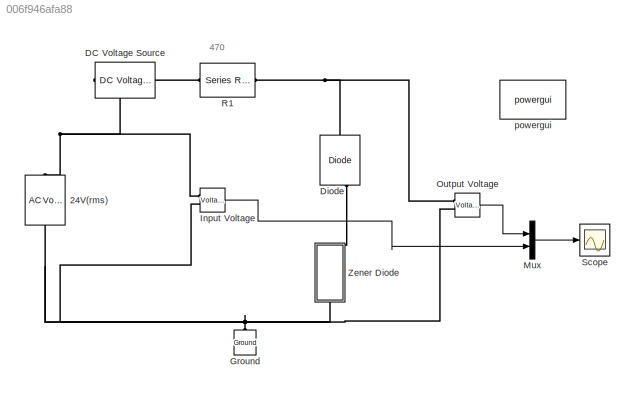
MODEL slx_006f946afa88
KIND model
CONFIG AbsTol = auto
CONFIG FixedStep = auto
CONFIG MaxStep = auto
CONFIG MinStep = auto
CONFIG RelTol = 1e-3
CONFIG SampleTimeConstraint = Unconstrained
CONFIG Solver = ode23tb
CONFIG SolverMode = Auto
CONFIG SolverName = ode23tb
CONFIG StartTime = 0.0
CONFIG StopTime = 0.05
BLOCK [Reference] 24V(rms)  REF=powerlib/Electrical
Sources/AC Voltage Source
  Amplitude = 24*sqrt(2)
  Frequency = 60
  Measurements = Voltage
  Phase = 0
  Ports = [0, 0, 0, 0, 0, 1, 1]
  SampleTime = 0
  SourceBlock = powerlib/Electrical\nSources/AC Voltage Source
  SourceType = AC Voltage Source
BLOCK [Reference] DC Voltage Source  REF=powerlib/Electrical
Sources/DC Voltage Source
  Amplitude = 10
  Measurements = Voltage
  Ports = [0, 0, 0, 0, 0, 1, 1]
  SourceBlock = powerlib/Electrical\nSources/DC Voltage Source
  SourceType = DC Voltage Source
BLOCK [Reference] Diode  REF=powerlib/Power
Electronics/Diode
  Cs = 0
  IC = 0
  Lon = 0
  Measurements = on
  Ports = [0, 1, 0, 0, 0, 1, 1]
  Ron = 0.001
  Rs = 0
  SourceBlock = powerlib/Power\nElectronics/Diode
  SourceType = Diode
  UseSnubber = off
  Vf = 0.8
BLOCK [Reference] Ground  REF=powerlib/Elements/Ground
  LConnTagsString = a
  Ports = [0, 0, 0, 0, 0, 1]
  SourceBlock = powerlib/Elements/Ground
  SourceType = Ground
BLOCK [Reference] Input Voltage  REF=powerlib/Measurements/Voltage Measurement
  OutputType = Complex
  PSBequivalent = 0
  PhasorSimulation = off
  Ports = [0, 1, 0, 0, 0, 2]
  SourceBlock = powerlib/Measurements/Voltage Measurement
  SourceType = Voltage Measurement
  UserDataPersistent = on
BLOCK [Mux] Mux
  DisplayOption = bar
  Inputs = 2
  Ports = [2, 1]
BLOCK [Reference] Output Voltage  REF=powerlib/Measurements/Voltage Measurement
  OutputType = Complex
  PSBequivalent = 0
  PhasorSimulation = off
  Ports = [0, 1, 0, 0, 0, 2]
  SourceBlock = powerlib/Measurements/Voltage Measurement
  SourceType = Voltage Measurement
  UserDataPersistent = on
BLOCK [Reference] R1  REF=powerlib/Elements/Series RLC Branch
  BranchType = R
  Capacitance = 1e-6
  Inductance = 1e-3
  InitialCurrent = 0
  InitialVoltage = 0
  LConnTagsString = __new0
  Measurements = None
  Ports = [0, 0, 0, 0, 0, 1, 1]
  RConnTagsString = __new0
  Resistance = 470
  SetiL0 = off
  Setx0 = off
  SourceBlock = powerlib/Elements/Series RLC Branch
  SourceType = Series RLC Branch
BLOCK [Scope] Scope
  Floating = off
  NumInputPorts = 1
  Ports = [1]
  YMax = 15
  YMin = -15
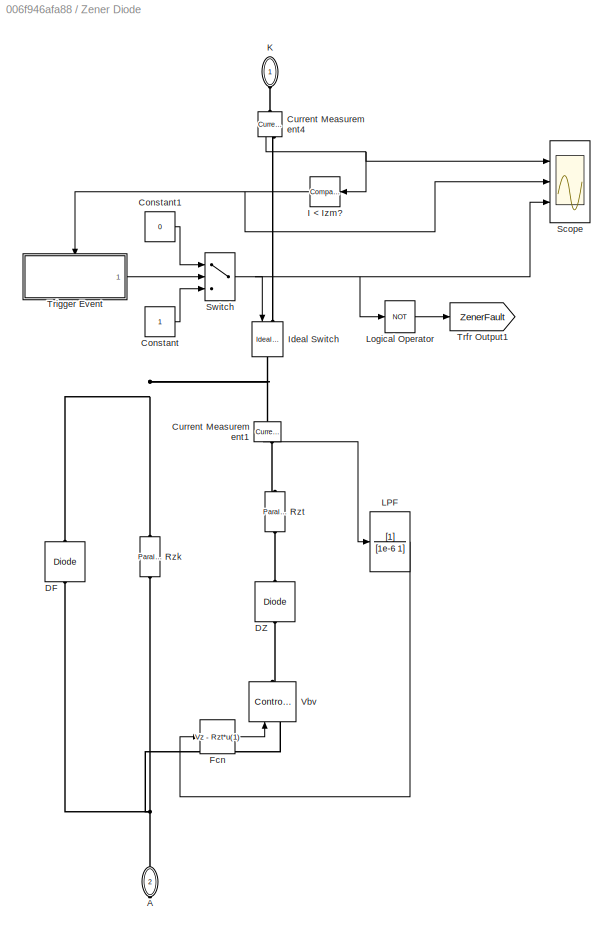
BLOCK [SubSystem] Zener Diode
  Ports = [0, 0, 0, 0, 0, 1, 1]
  RequestExecContextInheritance = off
BLOCK [PMIOPort] Zener Diode/A
  Port = 2
  Side = Right
BLOCK [Constant] Zener Diode/Constant
BLOCK [Constant] Zener Diode/Constant1
  Value = 0
BLOCK [Reference] Zener Diode/Current Measurement1  REF=powerlib/Measurements/Current Measurement
  OutputType = Complex
  PSBequivalent = 0
  PhasorSimulation = off
  Ports = [0, 1, 0, 0, 0, 1, 1]
  SourceBlock = powerlib/Measurements/Current Measurement
  SourceType = Current Measurement
BLOCK [Reference] Zener Diode/Current Measurement4  REF=powerlib/Measurements/Current Measurement
  OutputType = Complex
  PSBequivalent = 0
  PhasorSimulation = off
  Ports = [0, 1, 0, 0, 0, 1, 1]
  SourceBlock = powerlib/Measurements/Current Measurement
  SourceType = Current Measurement
BLOCK [Reference] Zener Diode/DF  REF=powerlib/Power
Electronics/Diode
  AttributesFormatString = \n
  Cs = 0
  IC = 0
  Lon = 0
  Measurements = off
  Ports = [0, 0, 0, 0, 0, 1, 1]
  Ron = Ron
  Rs = 1000
  SourceBlock = powerlib/Power\nElectronics/Diode
  SourceType = Diode
  UseSnubber = off
  Vf = Vf
BLOCK [Reference] Zener Diode/DZ  REF=powerlib/Power
Electronics/Diode
  AttributesFormatString = \n
  Cs = inf
  IC = 0
  Lon = 0
  Measurements = off
  Ports = [0, 0, 0, 0, 0, 1, 1]
  Ron = 1e-6
  Rs = 100
  SourceBlock = powerlib/Power\nElectronics/Diode
  SourceType = Diode
  UseSnubber = off
  Vf = 0
BLOCK [Fcn] Zener Diode/Fcn
  Expr = Vz - Rzt*u(1)
BLOCK [Reference] Zener Diode/I < Izm?  REF=simulink/Logic and Bit
Operations/Compare
To Constant
  OutDataTypeStr = boolean
  Ports = [1, 1]
  SourceBlock = simulink/Logic and Bit\nOperations/Compare\nTo Constant
  SourceType = Compare To Constant
  ZeroCross = on
  const = Izm
  relop = >
BLOCK [Reference] Zener Diode/Ideal Switch  REF=powerlib/Power
Electronics/Ideal Switch
  Cs = 0
  IC = 1
  Lon = 0
  Measurements = off
  Ports = [1, 0, 0, 0, 0, 1, 1]
  Ron = 0.001
  Rs = 1e5
  SourceBlock = powerlib/Power\nElectronics/Ideal Switch
  SourceType = Ideal Switch
BLOCK [PMIOPort] Zener Diode/K
  Port = 1
  Side = Left
BLOCK [TransferFcn] Zener Diode/LPF
  Denominator = [1e-6 1]
BLOCK [Logic] Zener Diode/Logical Operator
  AllPortsSameDT = off
  Operator = NOT
  OutDataTypeStr = boolean
  Ports = [1, 1]
BLOCK [Reference] Zener Diode/Rzk  REF=powerlib/Elements/Parallel RLC Branch
  AttributesFormatString = \n
  BranchType = R
  Capacitance = 1e-5
  Inductance = 1.0
  InitialCurrent = 0
  InitialVoltage = 0
  LConnTagsString = a
  Measurements = None
  Ports = [0, 0, 0, 0, 0, 1, 1]
  RConnTagsString = __new0
  Resistance = Rzk
  SetiL0 = off
  Setx0 = off
  SourceBlock = powerlib/Elements/Parallel RLC Branch
  SourceType = Parallel RLC Branch
BLOCK [Reference] Zener Diode/Rzt  REF=powerlib/Elements/Parallel RLC Branch
  AttributesFormatString = \n
  BranchType = R
  Capacitance = 1e-5
  Inductance = 1.0
  InitialCurrent = 0
  InitialVoltage = 0
  LConnTagsString = a
  Measurements = None
  Ports = [0, 0, 0, 0, 0, 1, 1]
  RConnTagsString = __new0
  Resistance = Rzt
  SetiL0 = off
  Setx0 = off
  SourceBlock = powerlib/Elements/Parallel RLC Branch
  SourceType = Parallel RLC Branch
BLOCK [Scope] Zener Diode/Scope
  DataFormat = StructureWithTime
  Floating = off
  LimitDataPoints = off
  NumInputPorts = 3
  Ports = [3]
  SampleTime = 0
  SaveName = ScopeData4
  YMax = 0.4~1~1.05
  YMin = -2.77556e-017~-1~0.95
  ZoomMode = xonly
BLOCK [Switch] Zener Diode/Switch
  Criteria = u2 > Threshold
  InputSameDT = off
  SaturateOnIntegerOverflow = off
BLOCK [Goto] Zener Diode/Trfr Output1
  GotoTag = ZenerFault
  TagVisibility = global
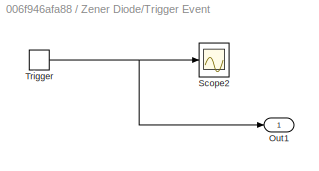
BLOCK [SubSystem] Zener Diode/Trigger Event
  Ports = [0, 1, 0, 1]
  RequestExecContextInheritance = off
  TreatAsAtomicUnit = on
BLOCK [Outport] Zener Diode/Trigger Event/Out1
  IconDisplay = Port number
BLOCK [Scope] Zener Diode/Trigger Event/Scope2
  DataFormat = StructureWithTime
  Floating = off
  LimitDataPoints = off
  NumInputPorts = 1
  Ports = [1]
  SampleTime = 0
  SaveName = ScopeData1
  YMax = 1
  YMin = -1
  ZoomMode = xonly
BLOCK [TriggerPort] Zener Diode/Trigger Event/Trigger
  Ports = [0, 1]
  ShowOutputPort = on
  StatesWhenEnabling = held
BLOCK [Reference] Zener Diode/Vbv  REF=powerlib/Electrical
Sources/Controlled Voltage Source
  Amplitude = 0
  Frequency = 0
  Initialize = off
  Measurements = None
  Phase = 0
  Ports = [1, 0, 0, 0, 0, 1, 1]
  SourceBlock = powerlib/Electrical\nSources/Controlled Voltage Source
  SourceType = Controlled Voltage Source
  Source_Type = DC
BLOCK [Reference] powergui  REF=powerlib/powergui
  DisableRonSwitches = off
  DisableSnubberDevices = on
  DisableVfSwitches = off
  DisplayEquations = off
  DisplayStyle = 1
  EnableUseOfTLC = off
  ErrMax = 1e-4
  Frange = [0:2:500]
  FreqAxis = off
  FunctionMessages = off
  HookPort = off
  Interpol = off
  Iterations = 50
  MaxFrequency = 1000
  Pbase = 100e6
  Ports = []
  Priority = 1
  ResistiveCurrentMeasurement = off
  RestoreLinks = warning
  RmsSteady = 1
  SPID = on
  SampleTime = 10e-6
  ShowGrid = off
  SolverType = Tustin/Backward Euler (TBE)
  SourceBlock = powerlib/powergui
  SourceType = PSB option menu block
  StartTime = 0.0
  SwTol = 0
  Ts = 100
  UnitsV = kV
  UnitsW = MW
  UserDataPersistent = on
  Xlog = on
  Ylog = off
  ZoomFFT = off
  buscounter = 0
  cycles = 1
  display = off
  echomessages = off
  frequency = 60
  frequencyindice = 0
  frequencyindicesteady = 1
  fundamental = 60
  methode = off
  save = off
  structure = 0
  variable = ZData
  x0status = blocks
ANNOTATION (root): 470
LINE Input Voltage:1 -> Mux:2
LINE Mux:1 -> Scope:1
LINE Output Voltage:1 -> Mux:1
LINE Zener Diode/Constant1:1 -> Zener Diode/Switch:1
LINE Zener Diode/Constant:1 -> Zener Diode/Switch:3
LINE Zener Diode/Current Measurement1:1 -> Zener Diode/LPF:1
NET Zener Diode/Current Measurement4:1 -> Zener Diode/I < Izm?:1, Zener Diode/Scope:1
LINE Zener Diode/Fcn:1 -> Zener Diode/Vbv:1
NET Zener Diode/I < Izm?:1 -> Zener Diode/Scope:2, Zener Diode/Trigger Event:trigger
LINE Zener Diode/LPF:1 -> Zener Diode/Fcn:1
LINE Zener Diode/Logical Operator:1 -> Zener Diode/Trfr Output1:1
NET Zener Diode/Switch:1 -> Zener Diode/Ideal Switch:1, Zener Diode/Logical Operator:1, Zener Diode/Scope:3
NET Zener Diode/Trigger Event/Trigger:1 -> Zener Diode/Trigger Event/Out1:1, Zener Diode/Trigger Event/Scope2:1
LINE Zener Diode/Trigger Event:1 -> Zener Diode/Switch:2
PNET net1: 24V(rms):LConn1 -- Ground:LConn1 -- Input Voltage:LConn2 -- Output Voltage:LConn2 -- Zener Diode:RConn1
PNET net2: 24V(rms):RConn1 -- DC Voltage Source:RConn1 -- Input Voltage:LConn1
PLINE DC Voltage Source:LConn1 -- R1:LConn1
PNET net3: Diode:LConn1 -- Output Voltage:LConn1 -- R1:RConn1
PLINE Diode:RConn1 -- Zener Diode:LConn1
PNET net4: Zener Diode/A:RConn1 -- Zener Diode/DF:LConn1 -- Zener Diode/Rzk:LConn1 -- Zener Diode/Vbv:LConn1
PNET net5: Zener Diode/Current Measurement1:LConn1 -- Zener Diode/DF:RConn1 -- Zener Diode/Ideal Switch:RConn1 -- Zener Diode/Rzk:RConn1
PLINE Zener Diode/Current Measurement1:RConn1 -- Zener Diode/Rzt:RConn1
PLINE Zener Diode/Current Measurement4:LConn1 -- Zener Diode/K:RConn1
PLINE Zener Diode/Current Measurement4:RConn1 -- Zener Diode/Ideal Switch:LConn1
PLINE Zener Diode/DZ:LConn1 -- Zener Diode/Rzt:LConn1
PLINE Zener Diode/DZ:RConn1 -- Zener Diode/Vbv:RConn1
note: NET lines group one-source signal fan-out (src -> all destinations, sorted); 1:1 wires keep LINE; PNET lines group multi-terminal physical nets as a canonical sorted terminal list (undirected conserving connections); 2-terminal nets keep the pairwise PLINE form
